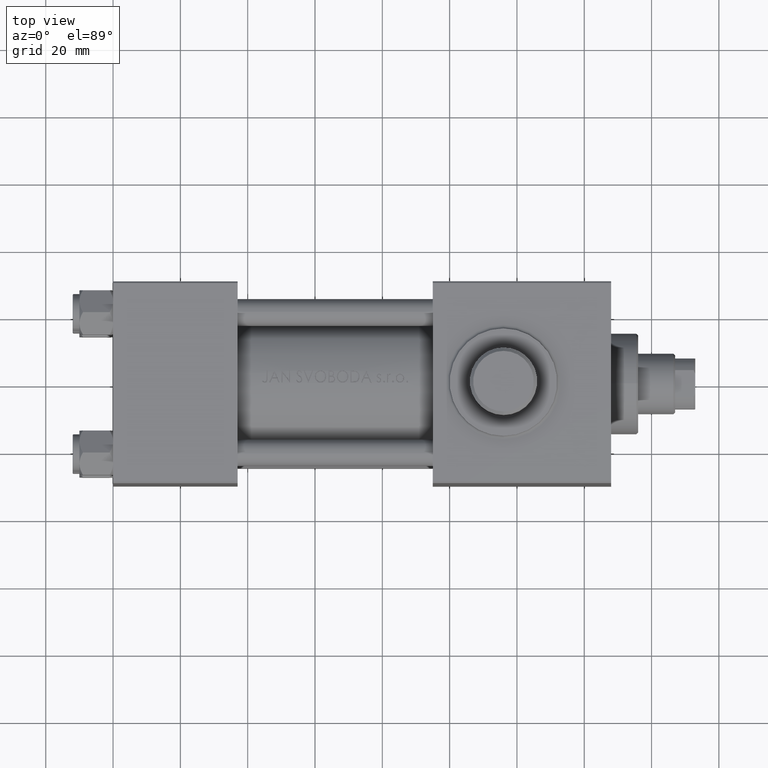
[diagram: clean part render]
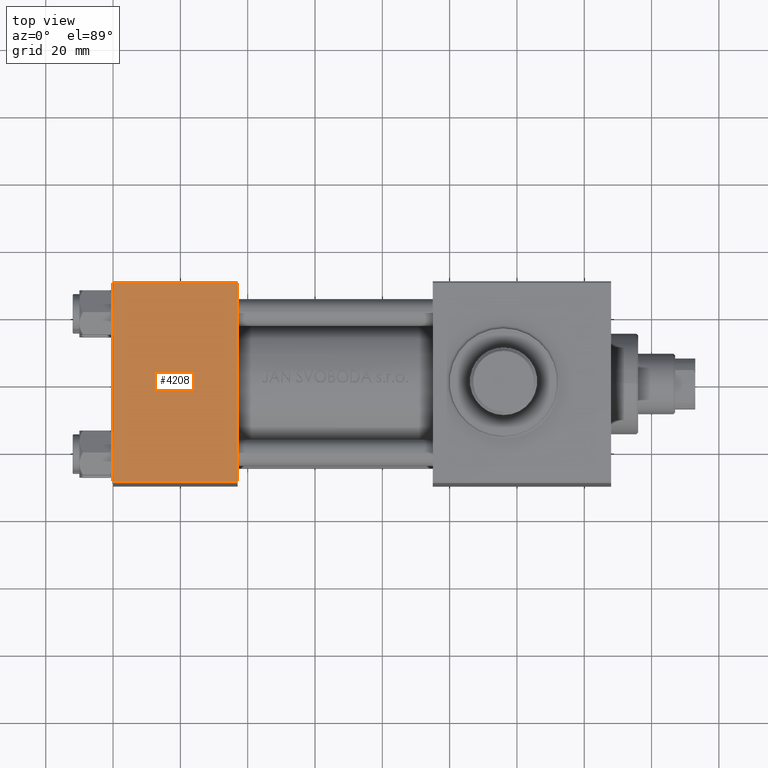
[diagram: same view with one face highlighted and labeled with its STEP entity id]
A machine part, top view. The second image highlights one B-rep face of the part: STEP entity #4208.
In plain terms, the highlighted planar face has unit normal (0, 0, -1).
Its self-contained STEP definition (entity closure, byte-faithful):
#1189 = ORIENTED_EDGE ( 'NONE', *, *, #29023, .T. ) ;
#2575 = CARTESIAN_POINT ( 'NONE',  ( 37.00000000000000000, -30.00000000000000000, -29.50000000000001776 ) ) ;
#4200 = LINE ( 'NONE', #22695, #23352 ) ;
#4208 = ADVANCED_FACE ( 'NONE', ( #31165 ), #6092, .F. ) ;
#5974 = CARTESIAN_POINT ( 'NONE',  ( 0.000000000000000000, -30.00000000000000000, 29.99999999999999289 ) ) ;
#6092 = PLANE ( 'NONE',  #26072 ) ;
#6323 = DIRECTION ( 'NONE',  ( 0.000000000000000000, -0.000000000000000000, 1.000000000000000000 ) ) ;
#7700 = CARTESIAN_POINT ( 'NONE',  ( 37.00000000000000000, -30.00000000000000000, 29.49999999999999289 ) ) ;
#8155 = VECTOR ( 'NONE', #34553, 1000.000000000000000 ) ;
#9022 = VECTOR ( 'NONE', #12778, 1000.000000000000000 ) ;
#10258 = LINE ( 'NONE', #2575, #42001 ) ;
#10877 = CARTESIAN_POINT ( 'NONE',  ( 0.000000000000000000, -30.00000000000000000, -29.50000000000001776 ) ) ;
#12022 = EDGE_CURVE ( 'NONE', #13304, #31140, #10258, .T. ) ;
#12778 = DIRECTION ( 'NONE',  ( -1.000000000000000000, 0.000000000000000000, 0.000000000000000000 ) ) ;
#12799 = CARTESIAN_POINT ( 'NONE',  ( 37.00000000000000000, -30.00000000000000000, -29.50000000000001776 ) ) ;
#13304 = VERTEX_POINT ( 'NONE', #10877 ) ;
#16621 = CARTESIAN_POINT ( 'NONE',  ( 0.000000000000000000, -30.00000000000000000, 29.49999999999999289 ) ) ;
#18403 = ORIENTED_EDGE ( 'NONE', *, *, #36297, .F. ) ;
#19416 = ORIENTED_EDGE ( 'NONE', *, *, #34512, .T. ) ;
#22695 = CARTESIAN_POINT ( 'NONE',  ( 37.00000000000000000, -30.00000000000000000, 29.99999999999999289 ) ) ;
#23352 = VECTOR ( 'NONE', #39814, 1000.000000000000000 ) ;
#23773 = LINE ( 'NONE', #5974, #8155 ) ;
#24569 = DIRECTION ( 'NONE',  ( -0.000000000000000000, 1.000000000000000000, 0.000000000000000000 ) ) ;
#26072 = AXIS2_PLACEMENT_3D ( 'NONE', #42382, #24569, #6323 ) ;
#28243 = VERTEX_POINT ( 'NONE', #16621 ) ;
#29023 = EDGE_CURVE ( 'NONE', #28243, #13304, #23773, .T. ) ;
#30131 = CARTESIAN_POINT ( 'NONE',  ( 37.00000000000000000, -30.00000000000000000, 29.49999999999999289 ) ) ;
#30591 = LINE ( 'NONE', #30131, #9022 ) ;
#31140 = VERTEX_POINT ( 'NONE', #12799 ) ;
#31165 = FACE_OUTER_BOUND ( 'NONE', #35336, .T. ) ;
#34512 = EDGE_CURVE ( 'NONE', #34837, #28243, #30591, .T. ) ;
#34553 = DIRECTION ( 'NONE',  ( 0.000000000000000000, 0.000000000000000000, -1.000000000000000000 ) ) ;
#34837 = VERTEX_POINT ( 'NONE', #7700 ) ;
#35336 = EDGE_LOOP ( 'NONE', ( #1189, #40071, #18403, #19416 ) ) ;
#36297 = EDGE_CURVE ( 'NONE', #34837, #31140, #4200, .T. ) ;
#39814 = DIRECTION ( 'NONE',  ( 0.000000000000000000, 0.000000000000000000, -1.000000000000000000 ) ) ;
#40071 = ORIENTED_EDGE ( 'NONE', *, *, #12022, .T. ) ;
#42001 = VECTOR ( 'NONE', #45641, 1000.000000000000000 ) ;
#42382 = CARTESIAN_POINT ( 'NONE',  ( 37.00000000000000000, -30.00000000000000000, 29.99999999999999289 ) ) ;
#45641 = DIRECTION ( 'NONE',  ( 1.000000000000000000, 0.000000000000000000, 0.000000000000000000 ) ) ;